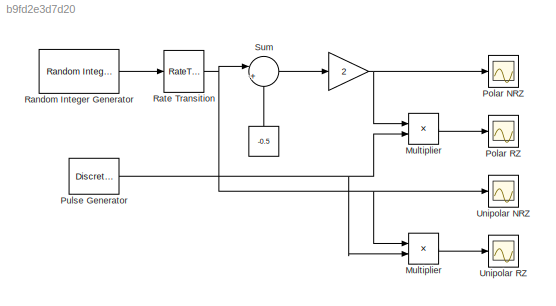
MODEL slx_b9fd2e3d7d20
KIND model
BLOCK [Constant]  
  Value = -0.5
BLOCK [Gain]    
  Gain = 2
  OutDataTypeStr = Inherit: Inherit via internal rule
  ParamDataTypeStr = Inherit: Inherit via internal rule
  SaturateOnIntegerOverflow = off
BLOCK [Product] Multiplier
  InputSameDT = off
  OutDataTypeStr = Inherit: Inherit via internal rule
  Ports = [2, 1]
  SaturateOnIntegerOverflow = off
BLOCK [Product] Multiplier 
  InputSameDT = off
  OutDataTypeStr = Inherit: Inherit via internal rule
  Ports = [2, 1]
  SaturateOnIntegerOverflow = off
BLOCK [Scope] Polar NRZ
  DataFormat = StructureWithTime
  Floating = off
  NumInputPorts = 1
  Ports = [1]
  SampleTime = 0
  ShowLegends = off
  YMax = 1.5
  YMin = -1.5
BLOCK [Scope] Polar RZ
  DataFormat = StructureWithTime
  Floating = off
  NumInputPorts = 1
  Ports = [1]
  SampleTime = 0
  SaveName = ScopeData1
  ShowLegends = off
  YMax = 1.5
  YMin = -1.5
BLOCK [DiscretePulseGenerator] Pulse Generator
  Period = 50
  Ports = [0, 1]
  PulseWidth = 25
  SampleTime = 2e-5
BLOCK [Reference] Random Integer Generator  REF=commrandsrc2/Random Integer
Generator
  Ports = [0, 1]
  SourceBlock = commrandsrc2/Random Integer\nGenerator
  SourceType = Random Integer Generator
  Ts = 1e-3
  frameBased = off
  mul = 2
  orient = on
  outDataType = double
  sampPerFrame = 1
  seed = randseed
BLOCK [RateTransition] Rate Transition
  OutPortSampleTime = 2e-5
BLOCK [Sum] Sum
  IconShape = round
  InputSameDT = off
  Inputs = |++
  OutDataTypeStr = Inherit: Inherit via internal rule
  Ports = [2, 1]
  SaturateOnIntegerOverflow = off
BLOCK [Scope] Unipolar NRZ
  DataFormat = StructureWithTime
  Floating = off
  NumInputPorts = 1
  Ports = [1]
  SampleTime = 0
  SaveName = ScopeData2
  ShowLegends = off
  YMax = 1.5
  YMin = -1.5
BLOCK [Scope] Unipolar RZ
  DataFormat = StructureWithTime
  Floating = off
  NumInputPorts = 1
  Ports = [1]
  SampleTime = 0
  SaveName = ScopeData3
  ShowLegends = off
  YMax = 1.5
  YMin = -1.5
NET    :1 -> Multiplier:1, Polar NRZ:1
LINE  :1 -> Sum:2
LINE Multiplier :1 -> Unipolar RZ:1
LINE Multiplier:1 -> Polar RZ:1
NET Pulse Generator:1 -> Multiplier :2, Multiplier:2
LINE Random Integer Generator:1 -> Rate Transition:1
NET Rate Transition:1 -> Multiplier :1, Sum:1, Unipolar NRZ:1
LINE Sum:1 ->    :1
note: NET lines group one-source signal fan-out (src -> all destinations, sorted); 1:1 wires keep LINE
